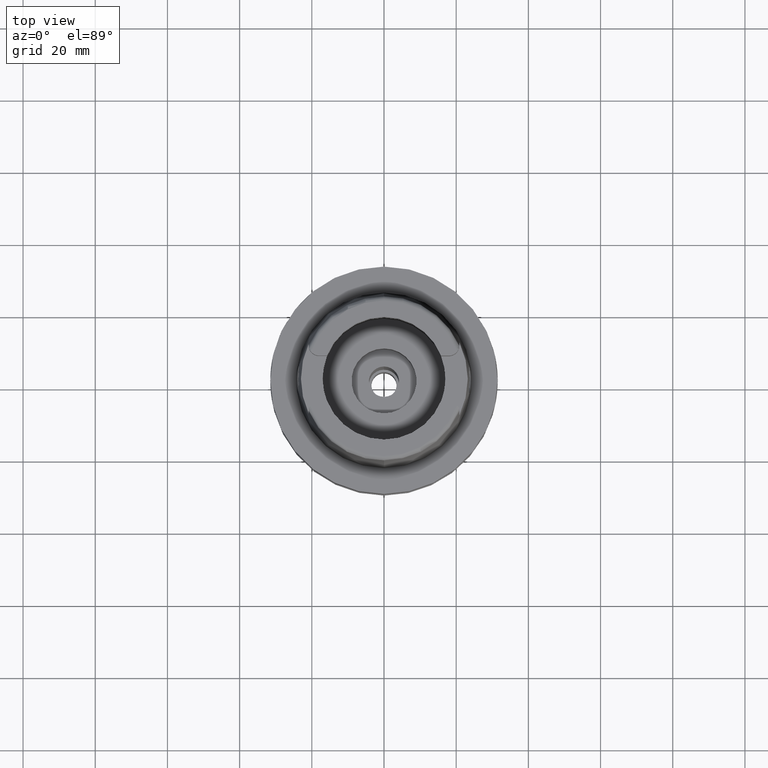
[diagram: clean part render]
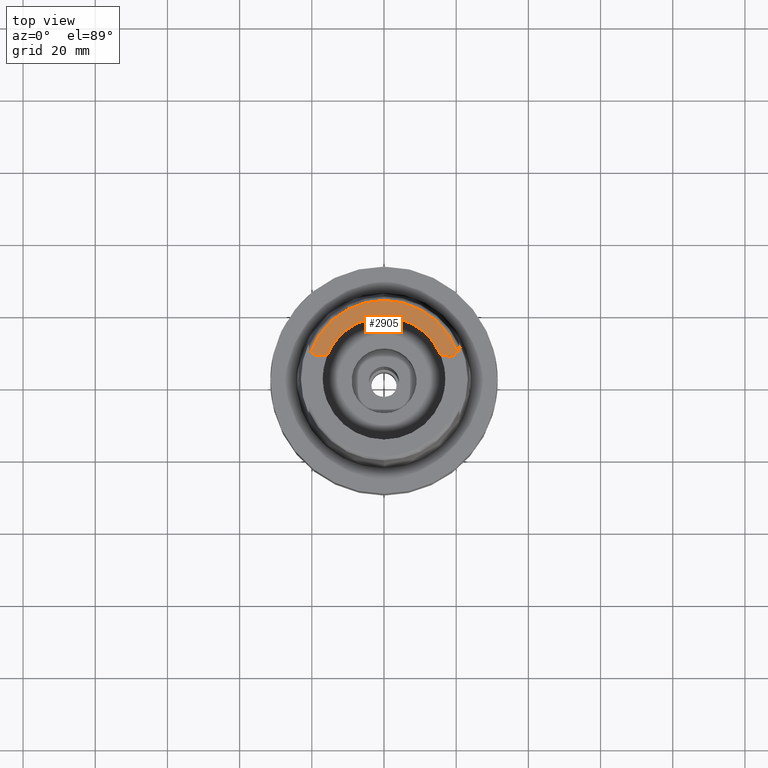
[diagram: same view with one face highlighted and labeled with its STEP entity id]
A machine part, top view. The second image highlights one B-rep face of the part: STEP entity #2905.
In plain terms, the highlighted planar face has unit normal (0, 0, 1).
Its self-contained STEP definition (entity closure, byte-faithful):
#397=DIRECTION('',(1.E0,-8.522579531193E-14,0.E0));
#398=VECTOR('',#397,2.188509563969E0);
#399=CARTESIAN_POINT('',(1.580149043603E1,6.27E0,3.2E1));
#400=LINE('',#399,#398);
#404=CARTESIAN_POINT('',(-1.799E1,9.15E0,3.2E1));
#405=DIRECTION('',(0.E0,0.E0,-1.E0));
#406=DIRECTION('',(0.E0,-1.E0,0.E0));
#407=AXIS2_PLACEMENT_3D('',#404,#405,#406);
#412=CARTESIAN_POINT('',(0.E0,0.E0,3.2E1));
#413=DIRECTION('',(0.E0,0.E0,-1.E0));
#414=DIRECTION('',(-9.395199128801E-1,3.424942821446E-1,0.E0));
#415=AXIS2_PLACEMENT_3D('',#412,#413,#414);
#420=CARTESIAN_POINT('',(1.799E1,9.15E0,3.2E1));
#421=DIRECTION('',(0.E0,0.E0,-1.E0));
#422=DIRECTION('',(7.912216523764E-1,-6.115294733787E-1,0.E0));
#423=AXIS2_PLACEMENT_3D('',#420,#421,#422);
#428=CARTESIAN_POINT('',(0.E0,0.E0,3.2E1));
#429=DIRECTION('',(0.E0,0.E0,1.E0));
#430=DIRECTION('',(9.294994374136E-1,3.688235294118E-1,0.E0));
#431=AXIS2_PLACEMENT_3D('',#428,#429,#430);
#436=CARTESIAN_POINT('',(0.E0,0.E0,3.2E1));
#437=DIRECTION('',(0.E0,0.E0,1.E0));
#438=DIRECTION('',(0.E0,1.E0,0.E0));
#439=AXIS2_PLACEMENT_3D('',#436,#437,#438);
#444=DIRECTION('',(1.E0,8.644330667353E-14,0.E0));
#445=VECTOR('',#444,2.188509563969E0);
#446=CARTESIAN_POINT('',(-1.799E1,6.27E0,3.2E1));
#447=LINE('',#446,#445);
#2309=CARTESIAN_POINT('',(-1.580149043603E1,6.27E0,3.2E1));
#2310=VERTEX_POINT('',#2309);
#2311=CARTESIAN_POINT('',(0.E0,1.7E1,3.2E1));
#2312=VERTEX_POINT('',#2311);
#2335=CARTESIAN_POINT('',(-1.799E1,6.27E0,3.2E1));
#2336=VERTEX_POINT('',#2335);
#2337=CARTESIAN_POINT('',(-2.026871835884E1,7.388795116670E0,3.2E1));
#2338=VERTEX_POINT('',#2337);
#2339=CARTESIAN_POINT('',(2.026871835884E1,7.388795116669E0,3.2E1));
#2340=VERTEX_POINT('',#2339);
#2341=CARTESIAN_POINT('',(1.799E1,6.27E0,3.2E1));
#2342=VERTEX_POINT('',#2341);
#2343=CARTESIAN_POINT('',(1.580149043603E1,6.27E0,3.2E1));
#2344=VERTEX_POINT('',#2343);
#2887=CARTESIAN_POINT('',(0.E0,0.E0,3.2E1));
#2888=DIRECTION('',(0.E0,0.E0,1.E0));
#2889=DIRECTION('',(0.E0,1.E0,0.E0));
#2890=AXIS2_PLACEMENT_3D('',#2887,#2888,#2889);
#2891=PLANE('',#2890);
#2893=ORIENTED_EDGE('',*,*,#2892,.F.);
#2895=ORIENTED_EDGE('',*,*,#2894,.T.);
#2897=ORIENTED_EDGE('',*,*,#2896,.T.);
#2899=ORIENTED_EDGE('',*,*,#2898,.T.);
#2900=ORIENTED_EDGE('',*,*,#2878,.F.);
#2901=ORIENTED_EDGE('',*,*,#2845,.T.);
#2902=ORIENTED_EDGE('',*,*,#2653,.T.);
#2903=EDGE_LOOP('',(#2893,#2895,#2897,#2899,#2900,#2901,#2902));
#2904=FACE_OUTER_BOUND('',#2903,.F.);
#408=CIRCLE('',#407,2.88E0);
#416=CIRCLE('',#415,2.157348458609E1);
#424=CIRCLE('',#423,2.88E0);
#432=CIRCLE('',#431,1.7E1);
#440=CIRCLE('',#439,1.7E1);
#2653=EDGE_CURVE('',#2312,#2310,#440,.T.);
#2845=EDGE_CURVE('',#2344,#2312,#432,.T.);
#2878=EDGE_CURVE('',#2344,#2342,#400,.T.);
#2892=EDGE_CURVE('',#2336,#2310,#447,.T.);
#2894=EDGE_CURVE('',#2336,#2338,#408,.T.);
#2896=EDGE_CURVE('',#2338,#2340,#416,.T.);
#2898=EDGE_CURVE('',#2340,#2342,#424,.T.);
#2905=ADVANCED_FACE('',(#2904),#2891,.T.);